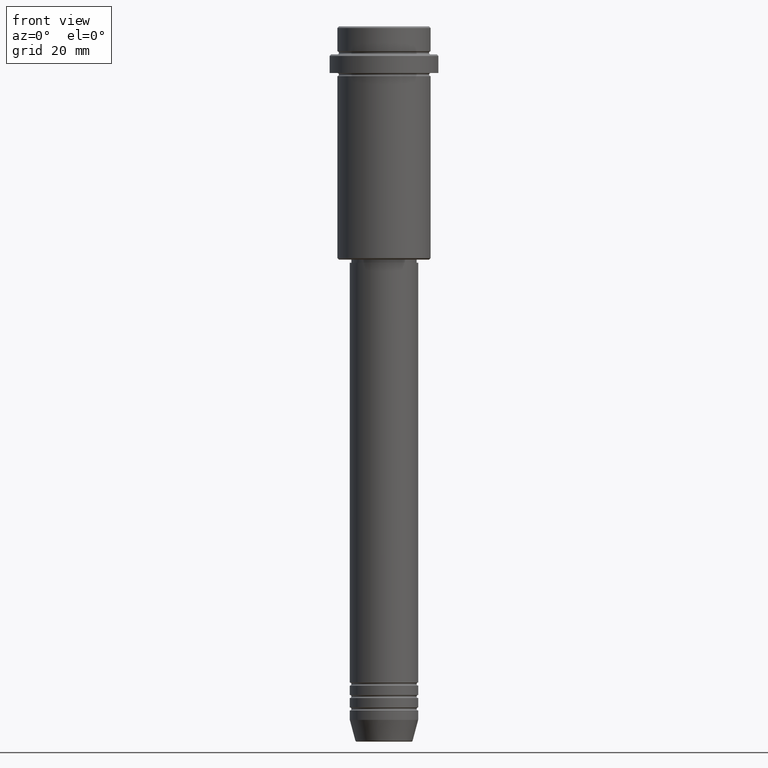
[diagram: clean part render]
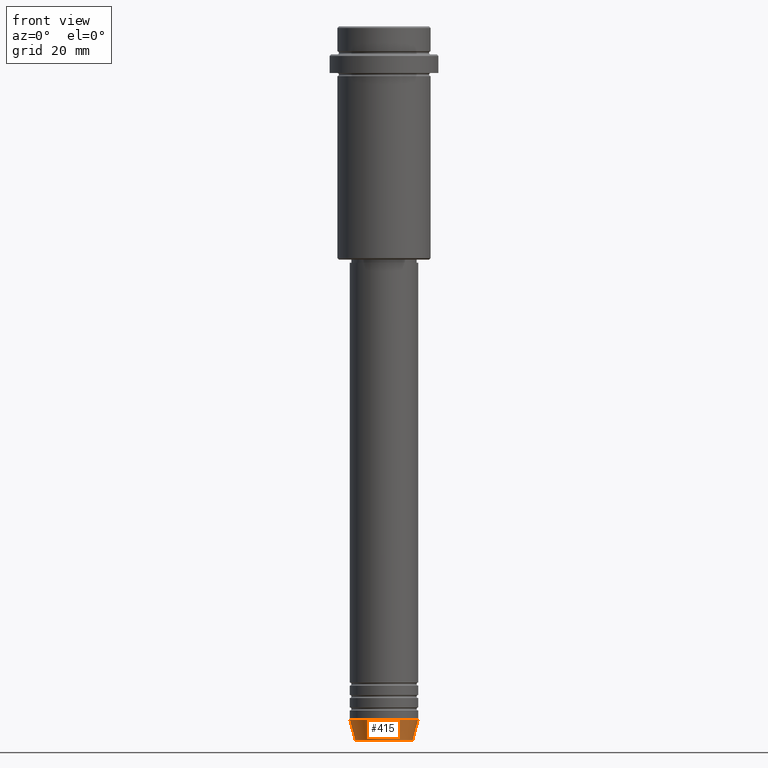
[diagram: same view with one face highlighted and labeled with its STEP entity id]
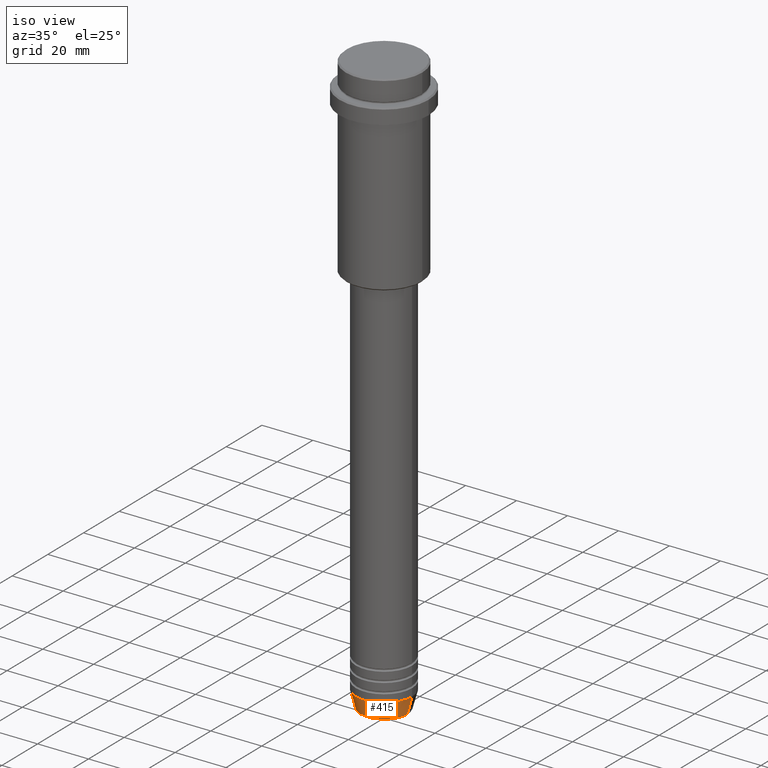
[diagram: same view with one face highlighted and labeled with its STEP entity id]
A machine part, front view. The second image highlights one B-rep face of the part: STEP entity #415.
A second angle (iso view) of the same face is appended — the face is thin or edge-on in the first view.
In plain terms, the highlighted conical surface has half-angle 15 deg.
Its self-contained STEP definition (entity closure, byte-faithful):
#73 = CARTESIAN_POINT ( 'NONE',  ( -11.00000000000000000, 1.347111479062088405E-15, -222.9999999999999716 ) ) ;
#75 = DIRECTION ( 'NONE',  ( 0.2588190451025213501, 0.000000000000000000, 0.9659258262890680902 ) ) ;
#97 = DIRECTION ( 'NONE',  ( -0.000000000000000000, -0.000000000000000000, 1.000000000000000000 ) ) ;
#150 = EDGE_CURVE ( 'NONE', #962, #651, #402, .T. ) ;
#221 = CARTESIAN_POINT ( 'NONE',  ( -11.00000000000000000, 1.347111479062088405E-15, -222.9999999999999716 ) ) ;
#225 = EDGE_CURVE ( 'NONE', #651, #1252, #863, .T. ) ;
#229 = AXIS2_PLACEMENT_3D ( 'NONE', #923, #1026, #1337 ) ;
#249 = CARTESIAN_POINT ( 'NONE',  ( 0.000000000000000000, 0.000000000000000000, -222.9999999999999716 ) ) ;
#282 = CARTESIAN_POINT ( 'NONE',  ( 11.00000000000000000, 0.000000000000000000, -222.9999999999999716 ) ) ;
#299 = CONICAL_SURFACE ( 'NONE', #888, 11.00000000000000000, 0.2617993877991500740 ) ;
#315 = LINE ( 'NONE', #784, #614 ) ;
#400 = CARTESIAN_POINT ( 'NONE',  ( 9.223655072137189492, 0.000000000000000000, -229.6294095225512422 ) ) ;
#402 = LINE ( 'NONE', #73, #933 ) ;
#415 = ADVANCED_FACE ( 'NONE', ( #901 ), #299, .T. ) ;
#604 = ORIENTED_EDGE ( 'NONE', *, *, #225, .F. ) ;
#614 = VECTOR ( 'NONE', #75, 1000.000000000000000 ) ;
#651 = VERTEX_POINT ( 'NONE', #221 ) ;
#753 = DIRECTION ( 'NONE',  ( -0.000000000000000000, -0.000000000000000000, 1.000000000000000000 ) ) ;
#763 = EDGE_LOOP ( 'NONE', ( #778, #1247, #1099, #604 ) ) ;
#778 = ORIENTED_EDGE ( 'NONE', *, *, #150, .F. ) ;
#784 = CARTESIAN_POINT ( 'NONE',  ( 11.00000000000000000, 0.000000000000000000, -222.9999999999999716 ) ) ;
#801 = EDGE_CURVE ( 'NONE', #962, #823, #1238, .T. ) ;
#823 = VERTEX_POINT ( 'NONE', #400 ) ;
#863 = CIRCLE ( 'NONE', #229, 11.00000000000000000 ) ;
#886 = DIRECTION ( 'NONE',  ( 1.000000000000000000, 0.000000000000000000, 0.000000000000000000 ) ) ;
#888 = AXIS2_PLACEMENT_3D ( 'NONE', #249, #97, #886 ) ;
#901 = FACE_OUTER_BOUND ( 'NONE', #763, .T. ) ;
#923 = CARTESIAN_POINT ( 'NONE',  ( 0.000000000000000000, 0.000000000000000000, -222.9999999999999716 ) ) ;
#933 = VECTOR ( 'NONE', #969, 1000.000000000000000 ) ;
#947 = CARTESIAN_POINT ( 'NONE',  ( 0.000000000000000000, 0.000000000000000000, -229.6294095225512422 ) ) ;
#962 = VERTEX_POINT ( 'NONE', #1310 ) ;
#969 = DIRECTION ( 'NONE',  ( -0.2588190451025213501, 3.169619151431772337E-17, 0.9659258262890680902 ) ) ;
#1026 = DIRECTION ( 'NONE',  ( -0.000000000000000000, -0.000000000000000000, 1.000000000000000000 ) ) ;
#1099 = ORIENTED_EDGE ( 'NONE', *, *, #1400, .T. ) ;
#1219 = AXIS2_PLACEMENT_3D ( 'NONE', #947, #753, #1366 ) ;
#1238 = CIRCLE ( 'NONE', #1219, 9.223655072137189492 ) ;
#1247 = ORIENTED_EDGE ( 'NONE', *, *, #801, .T. ) ;
#1252 = VERTEX_POINT ( 'NONE', #282 ) ;
#1310 = CARTESIAN_POINT ( 'NONE',  ( -9.223655072137189492, 1.238341722557647202E-15, -229.6294095225512422 ) ) ;
#1337 = DIRECTION ( 'NONE',  ( 1.000000000000000000, 0.000000000000000000, 0.000000000000000000 ) ) ;
#1366 = DIRECTION ( 'NONE',  ( 1.000000000000000000, 0.000000000000000000, 0.000000000000000000 ) ) ;
#1400 = EDGE_CURVE ( 'NONE', #823, #1252, #315, .T. ) ;